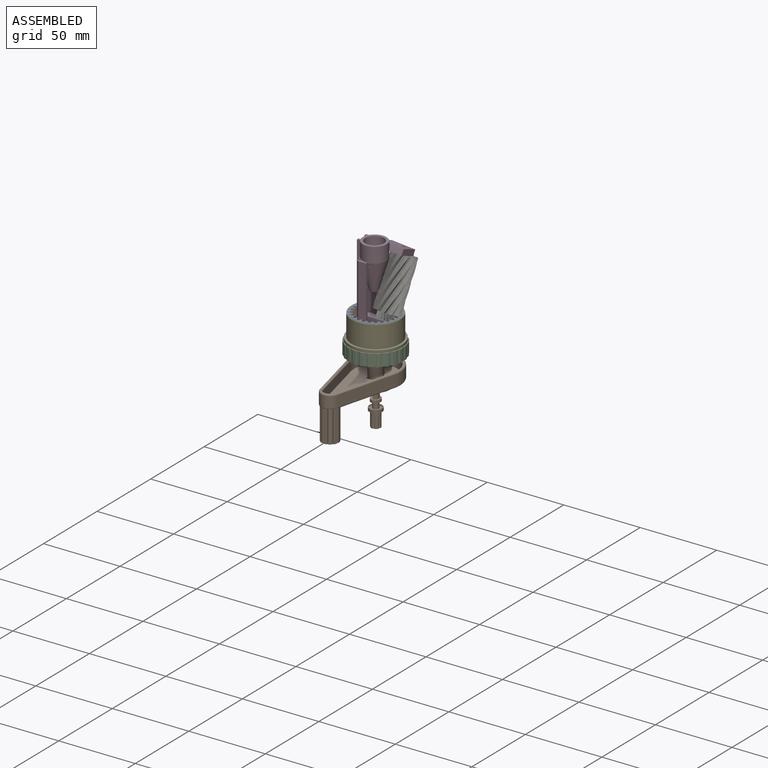
[diagram: assembled view]
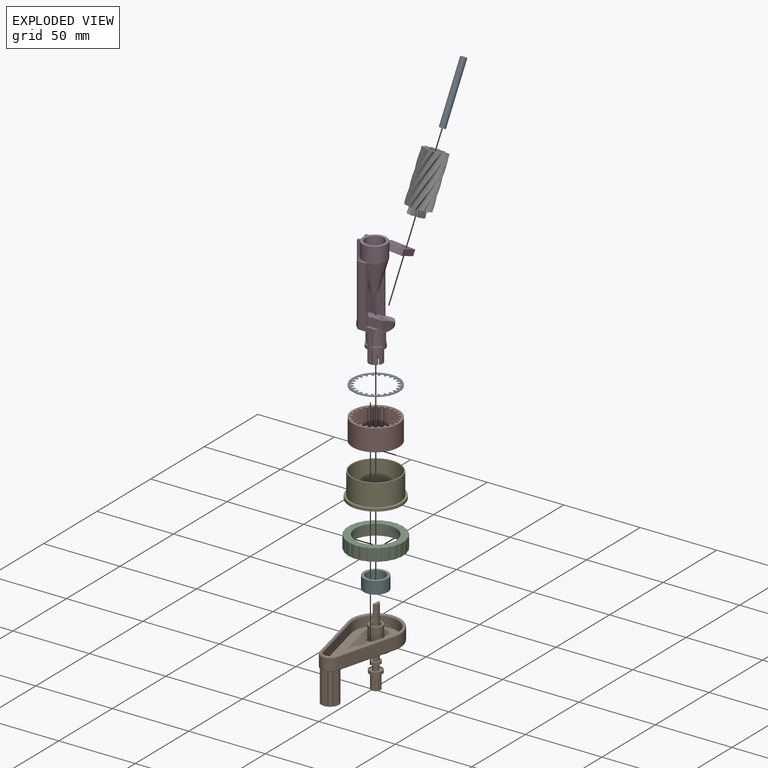
[diagram: exploded view]
GUIDED TOUR — MATED ASSEMBLY WITH SUBASSEMBLIES (Onshape document b5bac4f0b1a5c420101b6e14, AutoMate assembly b5bac4f0b1a5c420101b6e14_9101c636eaf036c20460e9f5_066e531b28c9b73478fcd529_default)

This assembly has 11 component occurrences arranged in 9 top-level units: 8 individual components plus 1 subassembly (S0). The tour has two levels: first the top level, where each subassembly is treated as one rigid unit; then each subassembly is toured internally in its own section (nesting deeper than one subassembly level is flattened into its subassembly's section).

Components are labeled P0..P10 across the whole record; subassembly units are labeled S0..S0. A mate is a constraint between two units; its type names the relative motion it leaves free:
  CYLINDRICAL — leaves both rotation about and translation along the listed axis free,
  FASTENED — locks the two components together rigidly (no relative motion),
  REVOLUTE — leaves rotation about the listed axis free (a hinge).
Axis/direction vectors are unit vectors and 'through' points are millimeter coordinates, both in the assembly's world frame.

TOP-LEVEL MATES (between units; each subassembly's internal mates are listed in its own section)
  1. FASTENED "Fastened 2": P9 <-> P5, direction (0.000, 0.000, 1.000) through (3.76, -2.23, -13.80) mm
  2. FASTENED "Fastened 3": P6 <-> P5, direction (0.000, 0.000, 1.000) through (3.76, -2.23, -22.80) mm
  3. REVOLUTE "Revolute 1": P7 <-> P0, axis (-0.085, -0.377, -0.922) through (12.49, 2.44, 8.56) mm
  4. FASTENED "Fastened 5": P10 <-> P9, direction (0.000, 0.000, -1.000) through (3.76, -2.23, -6.80) mm
  5. FASTENED "Fastened 6": S0 <-> P3, direction (0.000, 0.000, -1.000) through (3.76, -2.22, -35.70) mm
  6. FASTENED "Fastened 1": P0 <-> P3, direction (-0.085, -0.377, -0.922) through (10.88, -4.72, -8.97) mm
  7. REVOLUTE "Revolute 2": P6 <-> P3, axis (0.000, 0.000, 1.000) through (3.76, -2.23, -22.80) mm
  8. FASTENED "Fastened 4": P2 <-> P5, direction (0.000, 0.000, 1.000) through (3.76, -2.23, -22.80) mm

TOP-LEVEL ASSEMBLY ORDER
  1. P3 — the base component [order heuristic]
  2. P10 — core [order heuristic]
  3. P9 — core [order heuristic]
  4. P5 — core [order heuristic]
  5. P7 — core [order heuristic]
  6. P2 — core [order heuristic]
  7. P6 — core [order heuristic]
  8. S0 — core [order heuristic]
  9. P0 [order verified]
Order-tag legend:
  [order verified] — this step's position reverses a verified removal order: the component was checked to insert without passing through the ones already placed.
  [order heuristic] — the first 8 components form the assembly's core: parts whose collision-free extraction could not be verified, listed in mate-graph order.

Of the 11 component occurrences, 1 carries the full construction recipe — the FeatureScript program that regenerates the part's solid from scratch; the rest are supplied as boundary geometry only. Each toured unit is shown spotlighted twice — assembled, then exploded with a leader line back to its socket (green = recipe-attached component, orange = geometry-only, blue = subassembly unit; the rest desaturated gray).
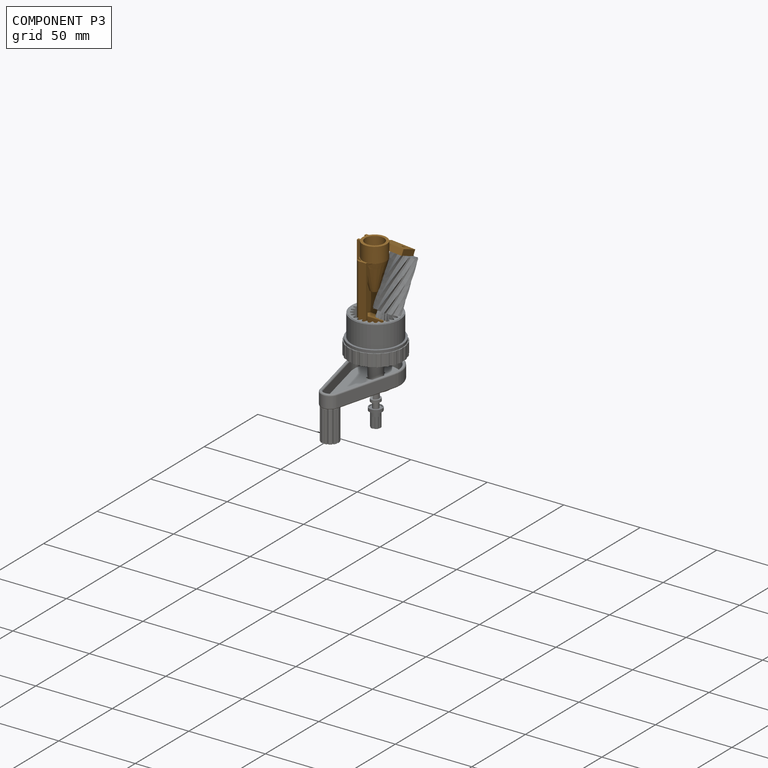
[diagram: component P3 — assembled]
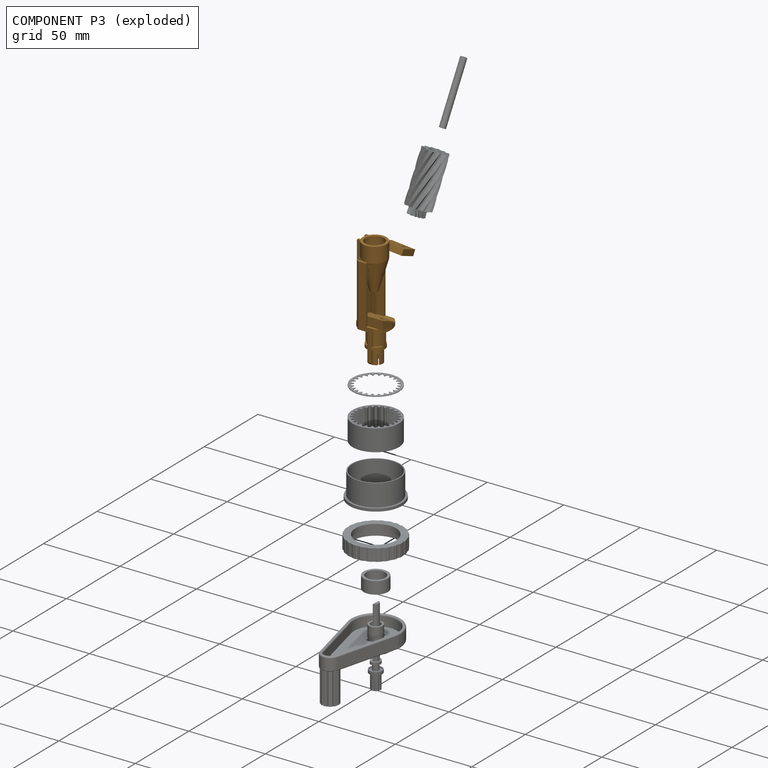
[diagram: component P3 — exploded]
COMPONENT P3 — geometry summary (no construction recipe available for this part):
  bounding box: 71.8 x 27.3 x 23.6 mm
  B-rep topology: 1 solid, 124 faces, 704 edges
  volume: 6577 mm^3 (14% of its bounding box)
Held by: FASTENED mate "Fastened 6" to P1; FASTENED mate "Fastened 1" to P0; REVOLUTE mate "Revolute 2" to P6.
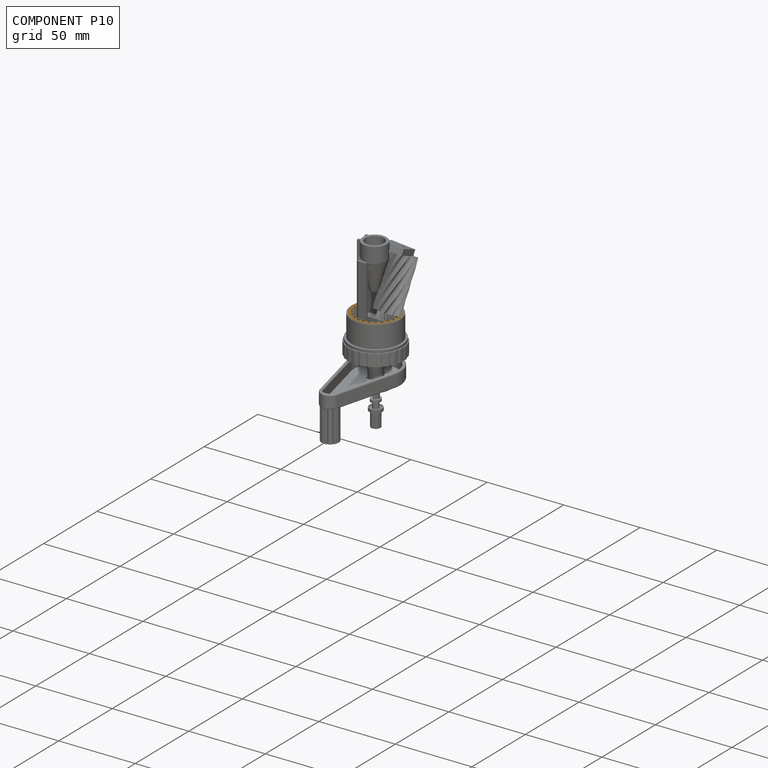
[diagram: component P10 — assembled]
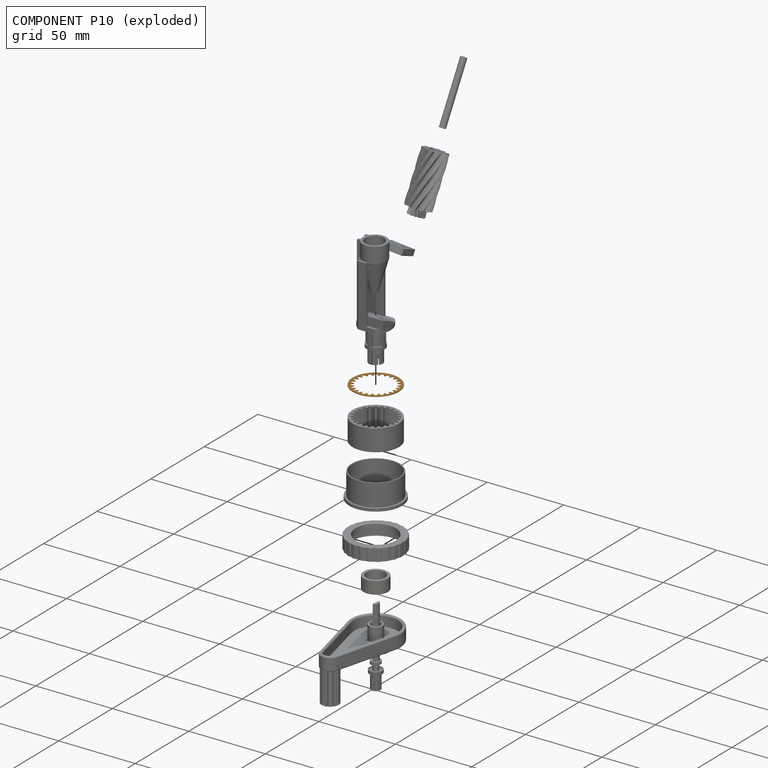
[diagram: component P10 — exploded]
COMPONENT P10 — geometry summary (no construction recipe available for this part):
  bounding box: 30.2 x 30.2 x 0.4 mm
  B-rep topology: 1 solid, 123 faces, 726 edges
  volume: 74 mm^3 (20% of its bounding box)
  symmetry: 6-fold rotationally symmetric about the z axis; mirror-symmetric across its z mid-plane
Held by: FASTENED mate "Fastened 5" to P9.
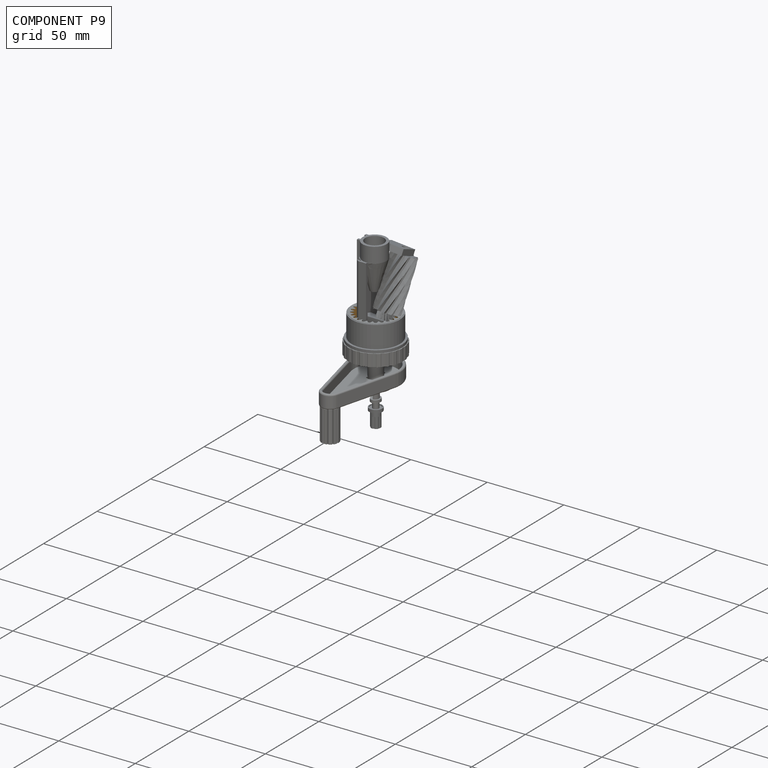
[diagram: component P9 — assembled]
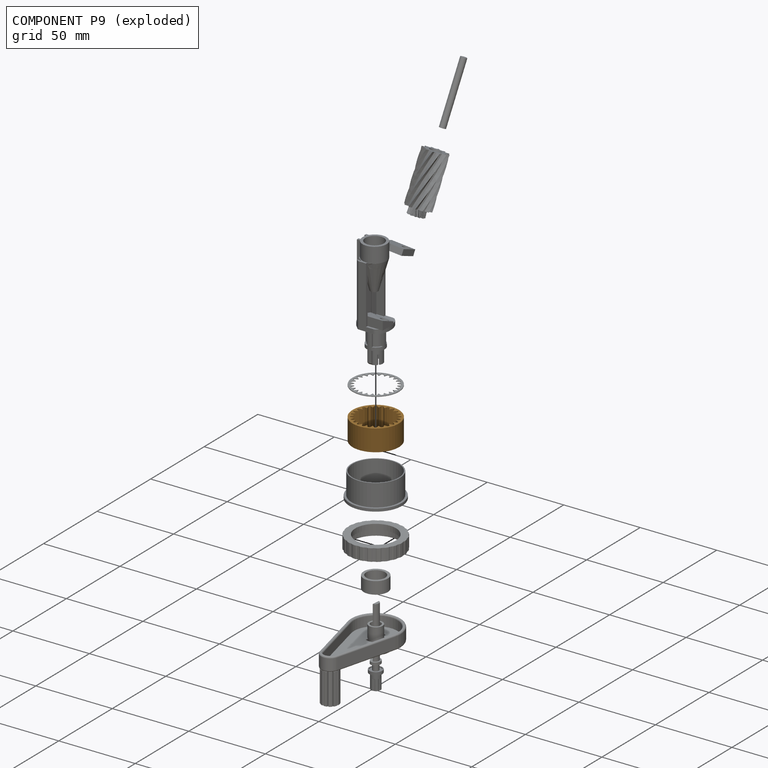
[diagram: component P9 — exploded]
COMPONENT P9 — geometry summary (no construction recipe available for this part):
  bounding box: 30.2 x 30.2 x 14.0 mm
  B-rep topology: 1 solid, 123 faces, 728 edges
  volume: 2579 mm^3 (20% of its bounding box)
  symmetry: 6-fold rotationally symmetric about the z axis; mirror-symmetric across its z mid-plane
Held by: FASTENED mate "Fastened 2" to P5; FASTENED mate "Fastened 5" to P10.
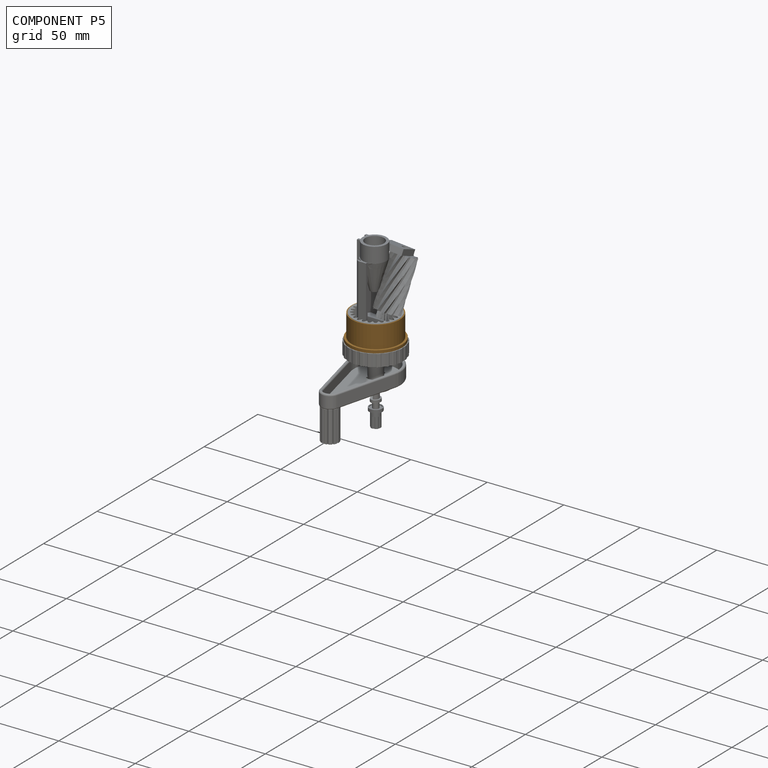
[diagram: component P5 — assembled]
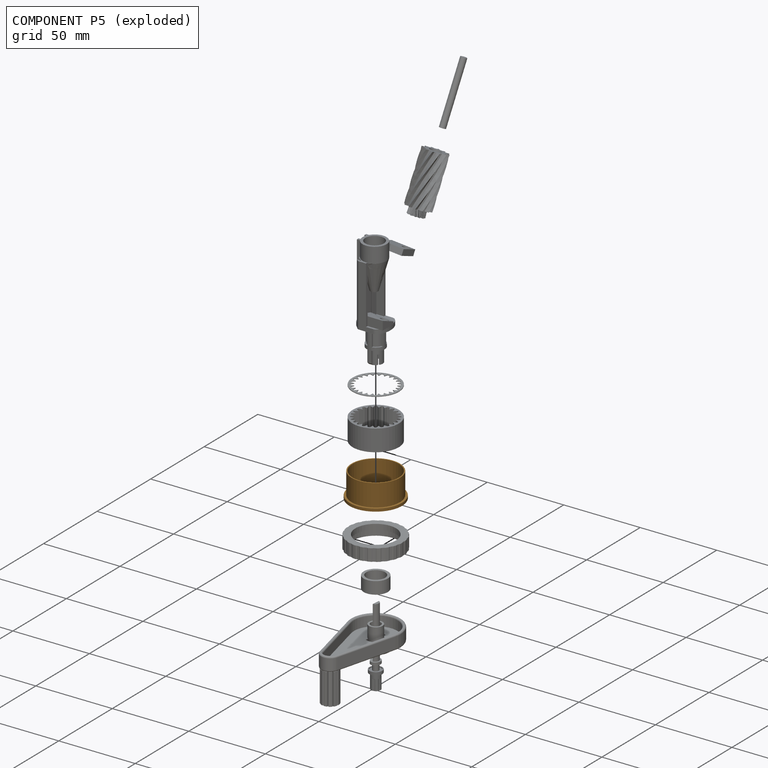
[diagram: component P5 — exploded]
COMPONENT P5 — geometry summary (no construction recipe available for this part):
  bounding box: 34.4 x 34.4 x 16.2 mm
  B-rep topology: 1 solid, 10 faces, 34 edges
  volume: 2669 mm^3 (14% of its bounding box)
  symmetry: revolution-symmetric about the z axis through its bounding-box center; mirror-symmetric across its x mid-plane, y mid-plane
Held by: FASTENED mate "Fastened 2" to P9; FASTENED mate "Fastened 3" to P6; FASTENED mate "Fastened 4" to P2.
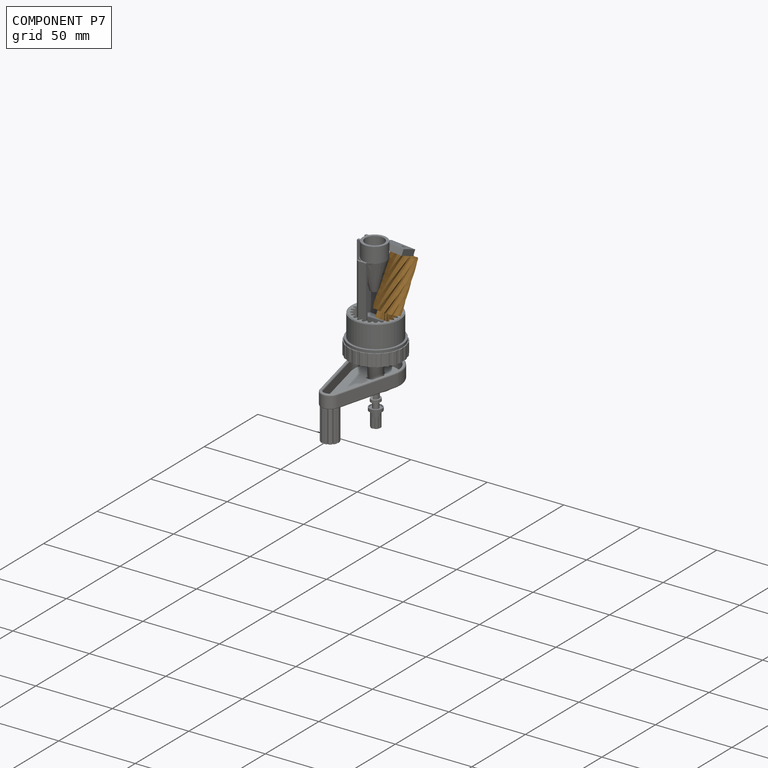
[diagram: component P7 — assembled]
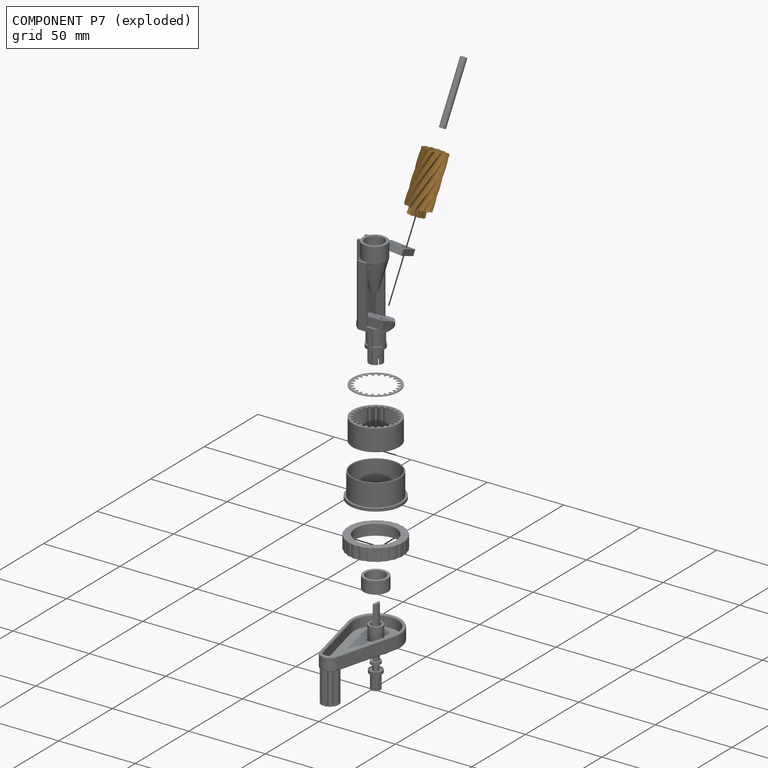
[diagram: component P7 — exploded]
COMPONENT P7 — geometry summary (no construction recipe available for this part):
  bounding box: 37.1 x 16.4 x 16.4 mm
  B-rep topology: 1 solid, 116 faces, 614 edges
  volume: 4354 mm^3 (44% of its bounding box)
  symmetry: 6-fold rotationally symmetric about the y axis
Held by: REVOLUTE mate "Revolute 1" to P0.
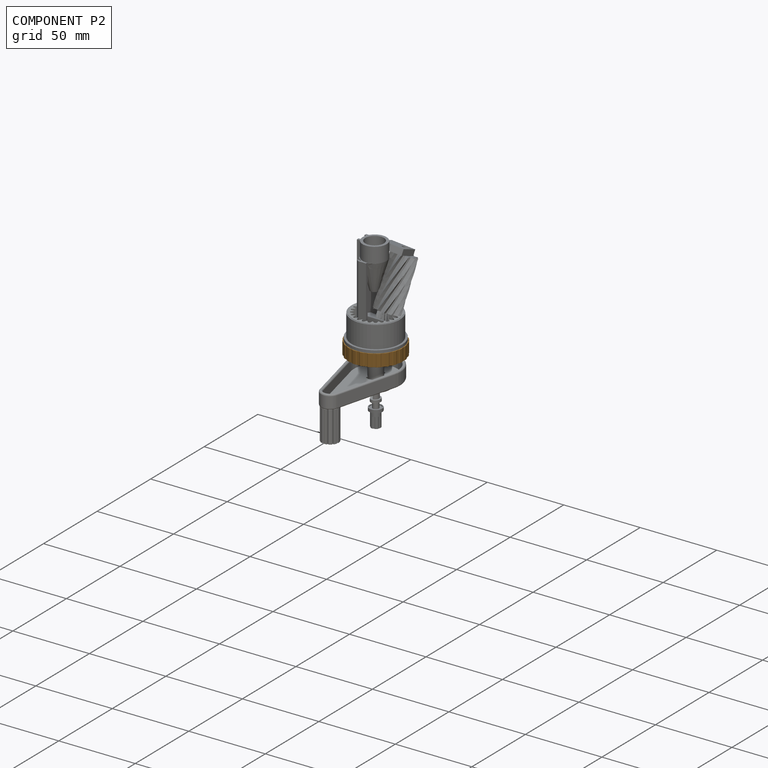
[diagram: component P2 — assembled]
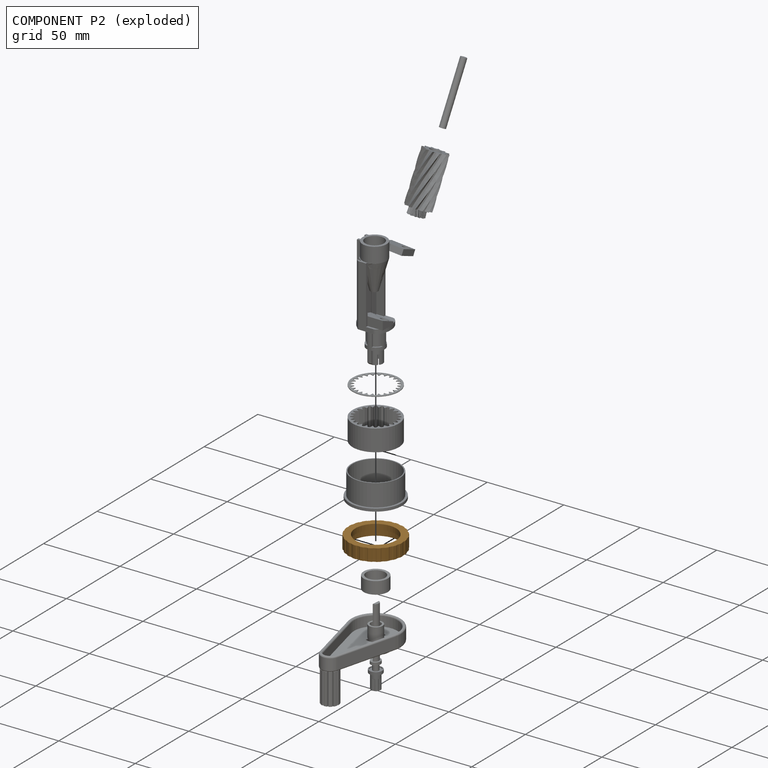
[diagram: component P2 — exploded]
COMPONENT P2 — geometry summary (no construction recipe available for this part):
  bounding box: 35.7 x 35.7 x 8.0 mm
  B-rep topology: 1 solid, 101 faces, 588 edges
  volume: 2593 mm^3 (25% of its bounding box)
  symmetry: 6-fold rotationally symmetric about the z axis; mirror-symmetric across its x mid-plane, y mid-plane
Held by: FASTENED mate "Fastened 4" to P5.
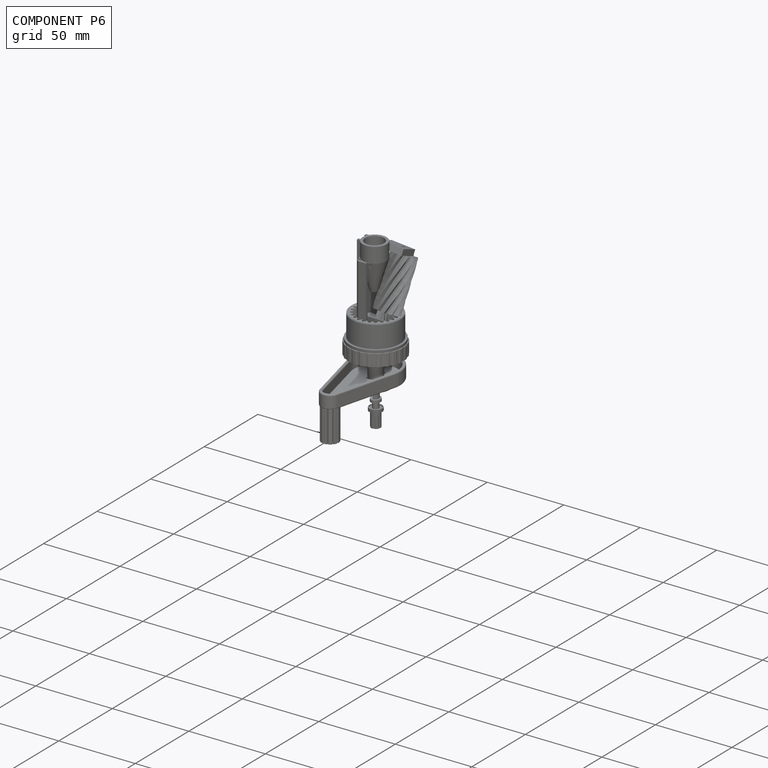
[diagram: component P6 — assembled]
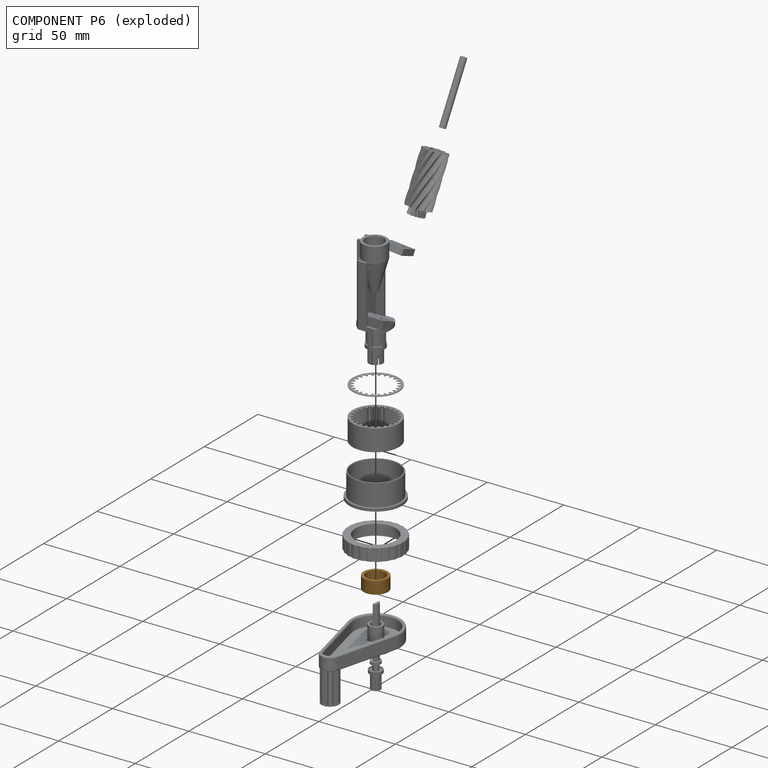
[diagram: component P6 — exploded]
COMPONENT P6 — geometry summary (no construction recipe available for this part):
  bounding box: 15.8 x 15.8 x 8.0 mm
  B-rep topology: 1 solid, 4 faces, 12 edges
  volume: 618 mm^3 (31% of its bounding box)
  symmetry: 2-fold rotationally symmetric about the x axis; 2-fold rotationally symmetric about the y axis; revolution-symmetric about the z axis through its bounding-box center; mirror-symmetric across its x mid-plane, y mid-plane, z mid-plane
Held by: FASTENED mate "Fastened 3" to P5; REVOLUTE mate "Revolute 2" to P3.
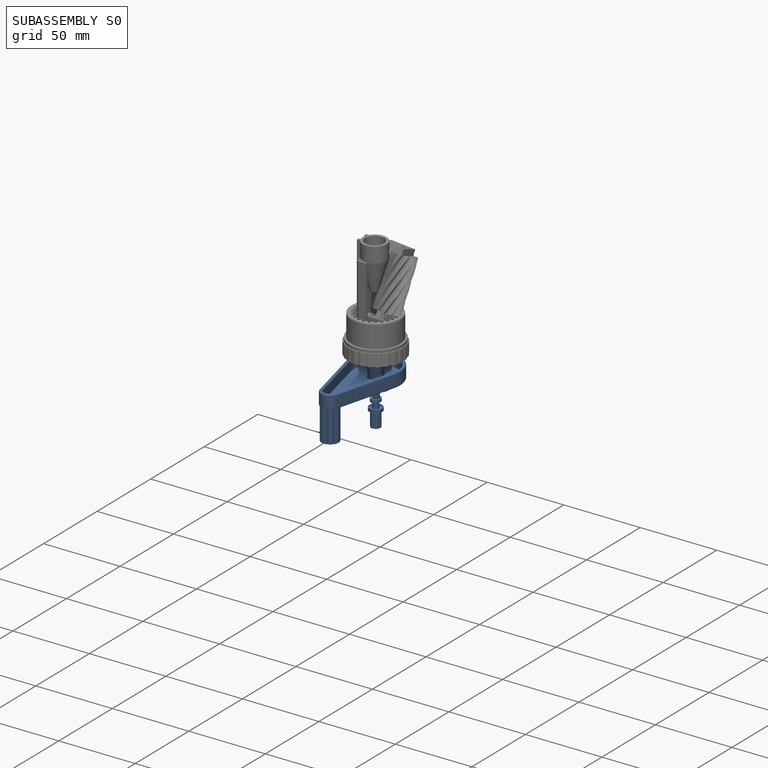
[diagram: subassembly S0 — assembled]
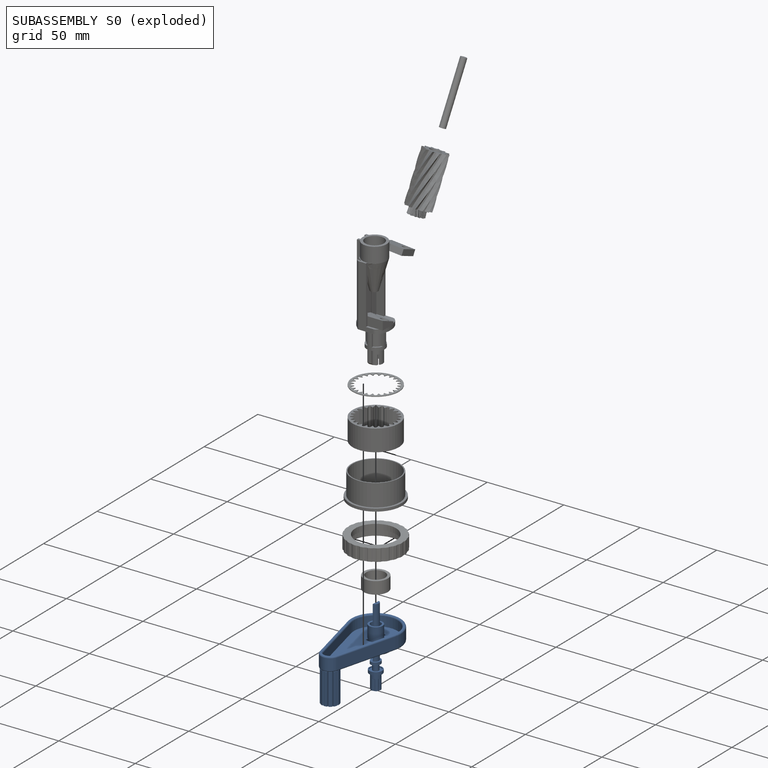
[diagram: subassembly S0 — exploded]
SUBASSEMBLY S0 — 3 components (P1, P4, P8), of which 0 recipe-attached; toured below.
Held by: FASTENED mate "Fastened 6" to P3.
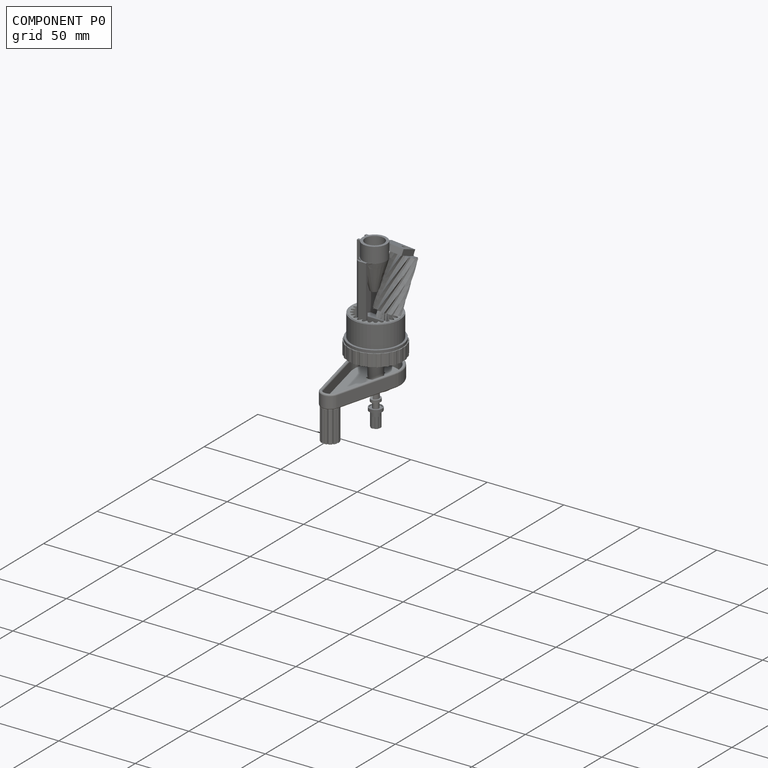
[diagram: component P0 — assembled]
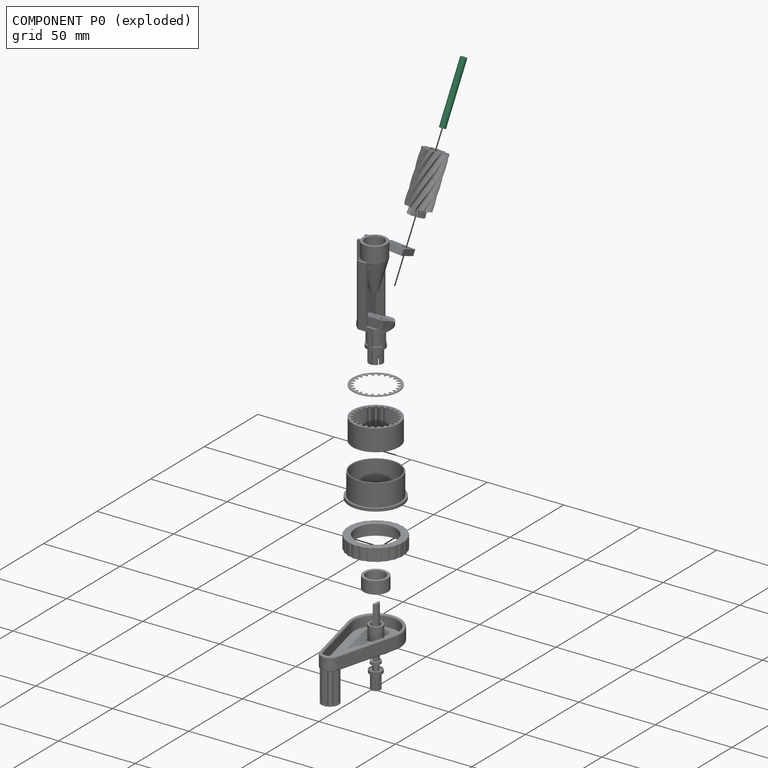
[diagram: component P0 — exploded]
COMPONENT P0 — recipe-attached (CADFS 00625837, mesh-verified: the recipe's output STEP matches this component's geometry to below the mesh-comparison resolution (tessellation chordal tolerance ~0.0606 mm)).
Held by: REVOLUTE mate "Revolute 1" to P7; FASTENED mate "Fastened 1" to P3.
Construction recipe (FeatureScript — the CAD program that rebuilds this solid; sketch coordinates are in the units given by the * unit suffixes, e.g. mm):

FeatureScript 2180;
import(path : "onshape/std/geometry.fs", version : "2180.0");
import(path : "onshape/std/common.fs", version : "2180.0");
const mm = millimeter;
const VERTEX = EntityType.VERTEX;
const EDGE = EntityType.EDGE;
const FACE = EntityType.FACE;
const BODY = EntityType.BODY;
function v(x, y){return vector(x, y);}
function OD(order){return orderDisambiguation(order);}
function OSD(set){return originalSetDisambiguation(set);}
function TD(topology){return topologyDisambiguation(topology);}
function TDD(query){return trueDependencyDisambiguation(query);}
function sQuery(a, b, c) {return sketchEntityQuery(a, b, c);}

annotation { "Feature Type Name" : "Feature", "Feature Type Description" : "" }
export const myFeature = defineFeature(function(context is Context, id is Id, definition is map)
    precondition{}
    {
        {
            var Q0;
            Q0=qCreatedBy(makeId("Top.planeOp"),FACE);
            var sketch = newSketch(context, id + "F0", { "sketchPlane" : qUnion([Q0])});
            skCircle(sketch, "E0", {"center": v(0, 0) * mm, "radius": 2 * mm});
            skSolve(sketch);
        }
        {
            var Q0;
            Q0=makeQuery(id+"F0.imprint","IMPRINT",FACE,{"disambiguationData":[TD([[makeQuery(id+"F0.imprint","IMPRINT",EDGE,{"derivedFrom":sQuery(id+"F0.wireOp",EDGE,"E0")}),1.0]])]});
            extrude(context, id + "F1", {"entities" : qUnion([Q0]), "depth" : 40 * mm, "offsetDistance" : 25 * mm});
        }
    });
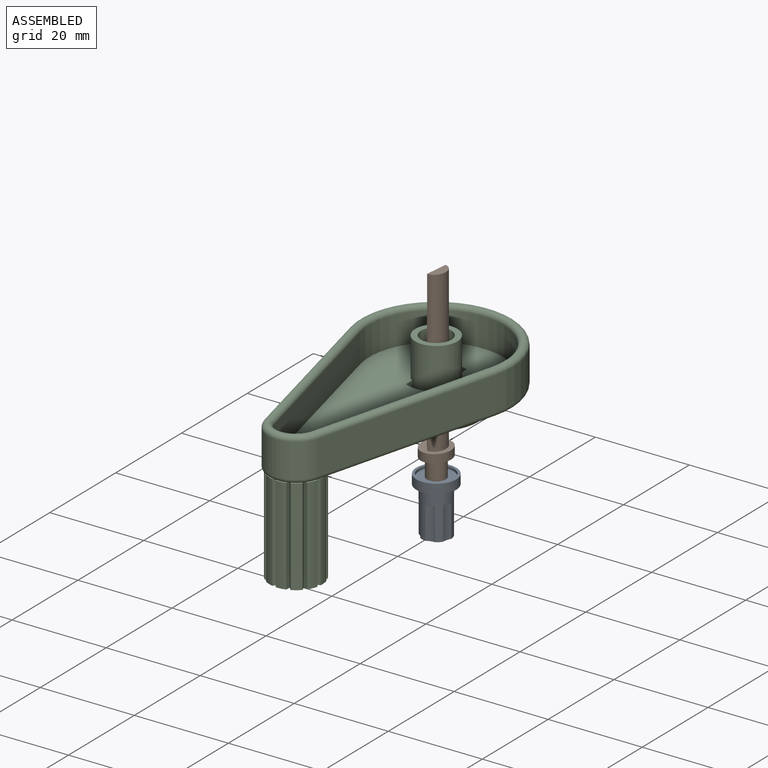
[diagram: subassembly S0 — assembled view]
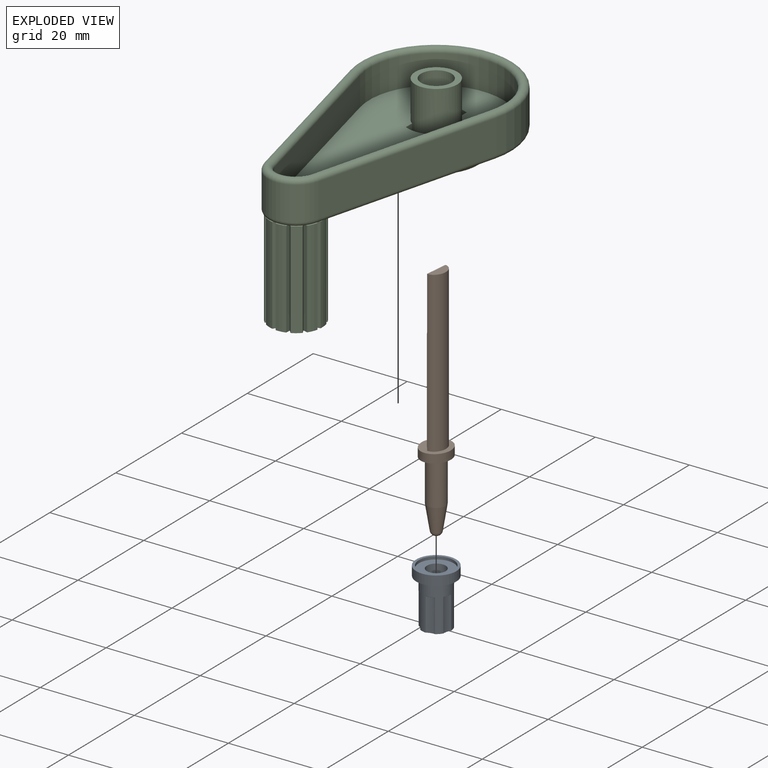
[diagram: subassembly S0 — exploded view]
SUBASSEMBLY S0 TOUR — 3 components, shown here in isolation at its own camera.

INTERNAL MATES
  1. CYLINDRICAL "Cylindrical 1": P4 <-> P8, axis (0.000, 0.000, -1.000) through (3.76, -2.22, -58.85) mm
  2. CYLINDRICAL "Cylindrical 1": P1 <-> P4, axis (0.000, 0.000, -1.000) through (3.76, -2.22, -62.88) mm
  3. CYLINDRICAL "Cylindrical 1": P1 <-> P4, axis (0.000, 0.000, -1.000) through (3.76, -2.22, -62.88) mm
  4. CYLINDRICAL "Cylindrical 1": P4 <-> P8, axis (0.000, 0.000, -1.000) through (3.76, -2.22, -58.85) mm

ASSEMBLY ORDER (within the subassembly)
  1. P4 — the base component [order heuristic]
  2. P1 — core [order heuristic]
  3. P8 [order verified]
Order-tag legend:
  [order verified] — this step's position reverses a verified removal order: the component was checked to insert without passing through the ones already placed.
  [order heuristic] — the first 2 components form the assembly's core: parts whose collision-free extraction could not be verified, listed in mate-graph order.
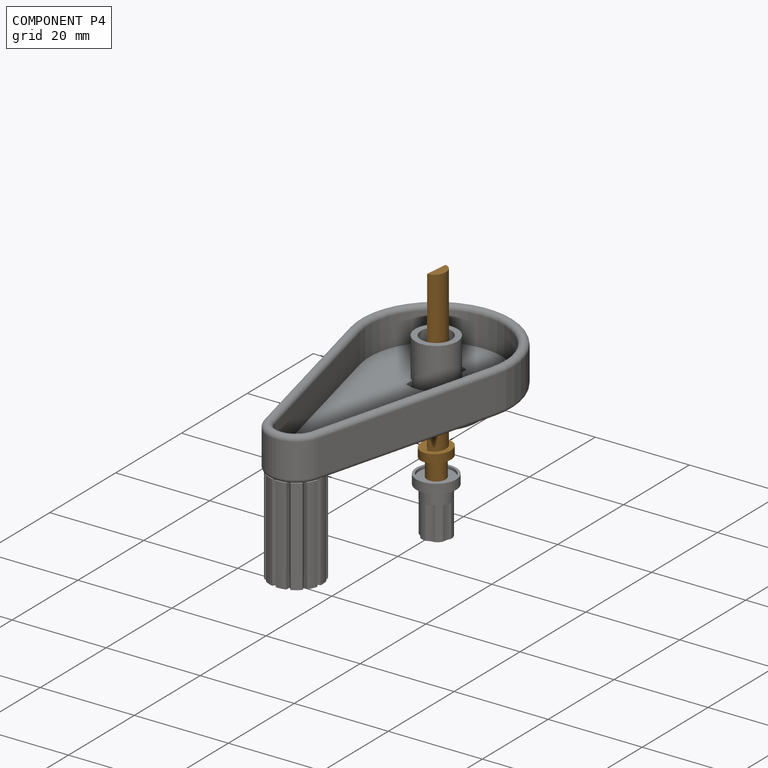
[diagram: component P4 — assembled]
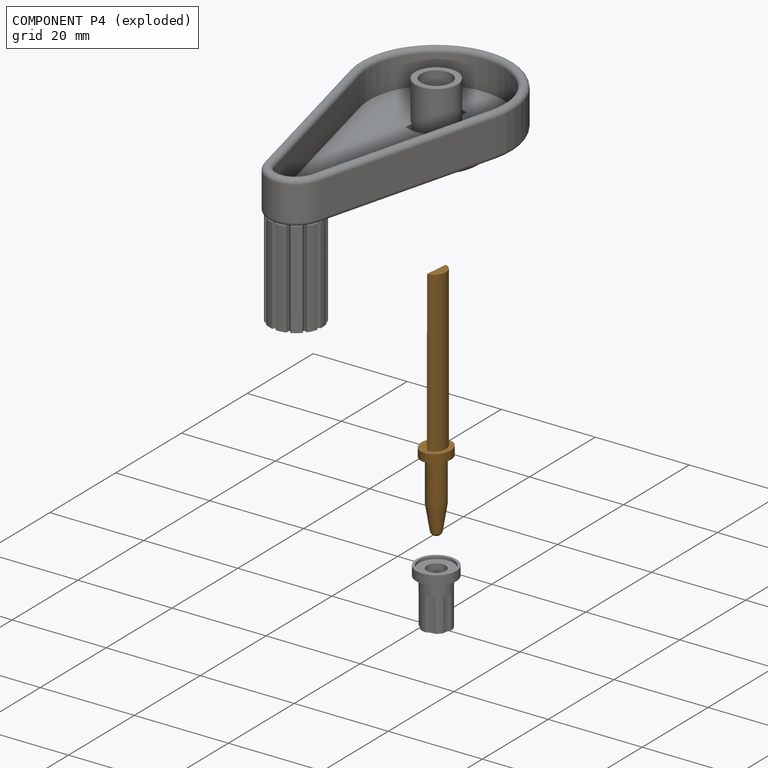
[diagram: component P4 — exploded]
COMPONENT P4 — geometry summary (no construction recipe available for this part):
  bounding box: 51.0 x 6.9 x 6.1 mm
  B-rep topology: 1 solid, 14 faces, 60 edges
  volume: 539 mm^3 (25% of its bounding box)
  symmetry: mirror-symmetric across its x mid-plane
Held by: CYLINDRICAL mate "Cylindrical 1" to P8; CYLINDRICAL mate "Cylindrical 1" to P1; CYLINDRICAL mate "Cylindrical 1" to P1; CYLINDRICAL mate "Cylindrical 1" to P8.
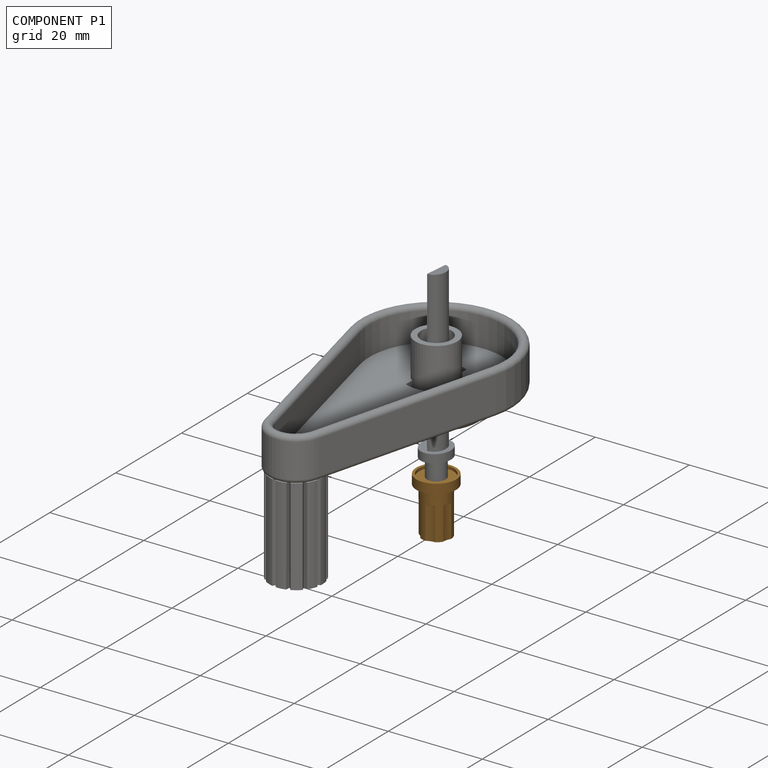
[diagram: component P1 — assembled]
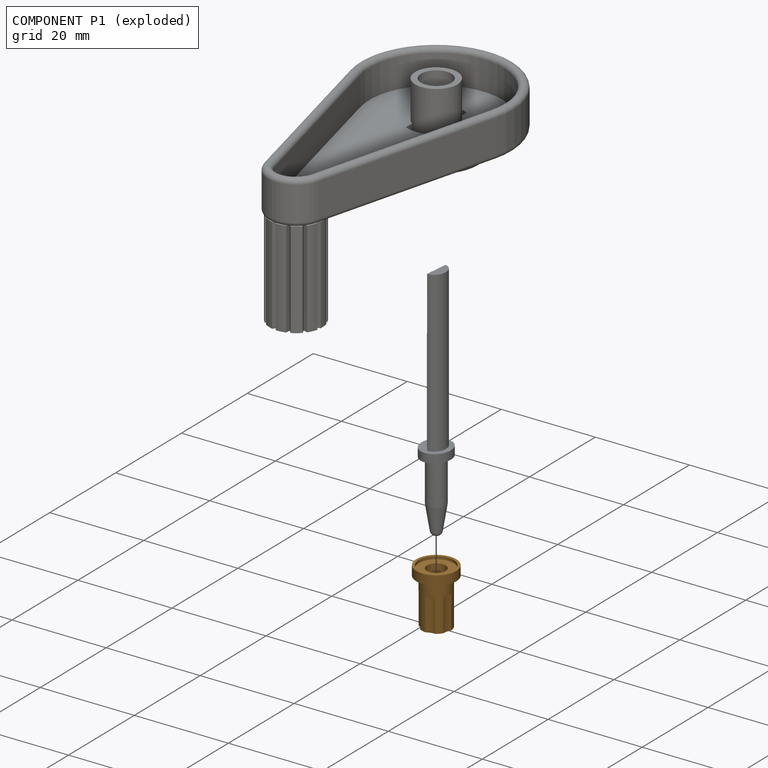
[diagram: component P1 — exploded]
COMPONENT P1 — geometry summary (no construction recipe available for this part):
  bounding box: 11.8 x 8.5 x 8.5 mm
  B-rep topology: 1 solid, 80 faces, 347 edges
  volume: 230 mm^3 (27% of its bounding box)
  symmetry: 6-fold rotationally symmetric about the y axis; mirror-symmetric across its x mid-plane, z mid-plane
Held by: CYLINDRICAL mate "Cylindrical 1" to P4; CYLINDRICAL mate "Cylindrical 1" to P4.
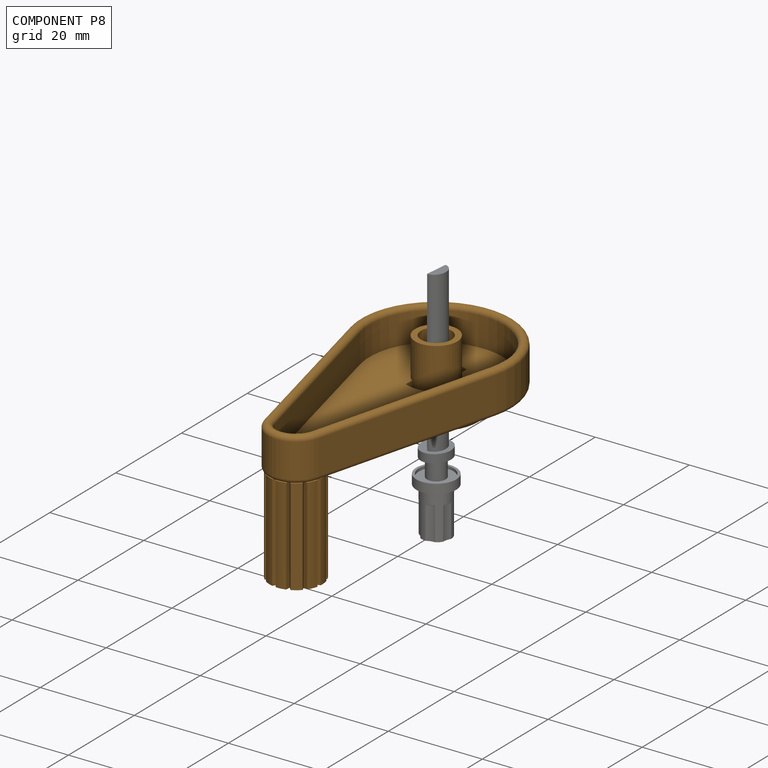
[diagram: component P8 — assembled]
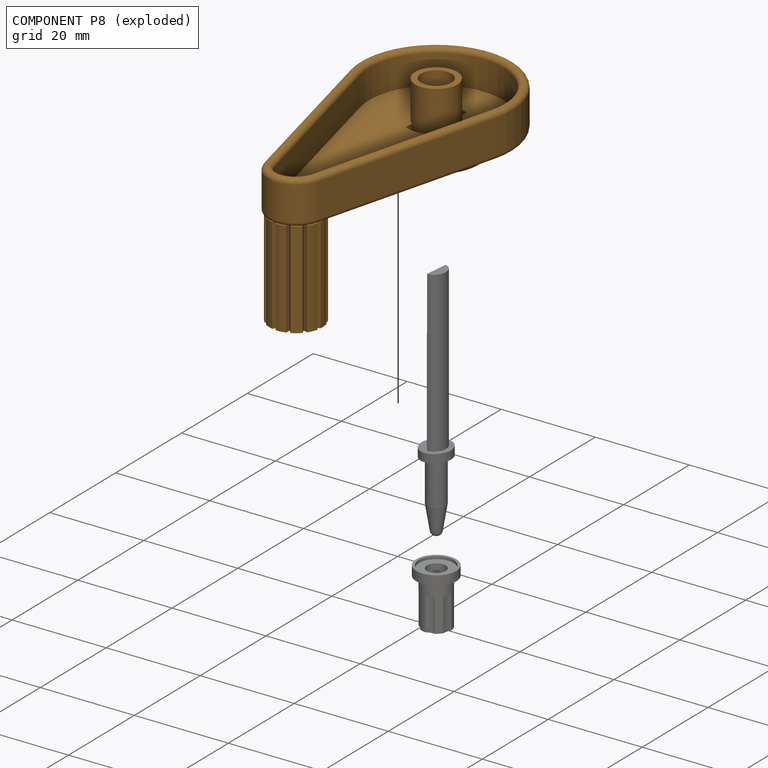
[diagram: component P8 — exploded]
COMPONENT P8 — geometry summary (no construction recipe available for this part):
  bounding box: 66.1 x 35.2 x 30.5 mm
  B-rep topology: 1 solid, 93 faces, 484 edges
  volume: 7980 mm^3 (11% of its bounding box)
Held by: CYLINDRICAL mate "Cylindrical 1" to P4; CYLINDRICAL mate "Cylindrical 1" to P4.
PROVENANCE & LICENSES
Assembly (occurrences, transforms, mates, per-part STEP geometry): AutoMate dataset, Zenodo record 7776208, CC0.
Construction recipes: CADFS (HuggingFace VladPyatov/CADFS, CC-BY-4.0, layered over the ABC dataset), FeatureScript reconstruction programs keyed by ABC model id.
Join: ABC meta listings map ABC model id -> Onshape documentId; within a shared document, parts are matched by geometric signature (bounding-box dims + volume at 0.1% relative tolerance, exact B-rep face/solid counts).
Verification: 1 of this assembly's 11 components carries a recipe attachment, and every attachment is mesh-verified: the CADFS STEP and the AutoMate member STEP were compared as meshes in their shared local frame (symmetric sampled-point-to-mesh distance); worst across the 1 attachment: below the mesh-comparison resolution (tessellation chordal tolerance ~0.0606 mm) on a 40 mm part.
Renders: orthographic iso camera (az 35 / el 25); the floor grid conveys scale (grid pitch printed in each image; no ruler). In the exploded view each component is displaced by its stored offset vector: the offsets alone carry the explosion direction (mate normal/axis signs are not orientation cues and do not encode it), and separation distances are assigned per mate-chain, not proportionally to assembly-order depth.
